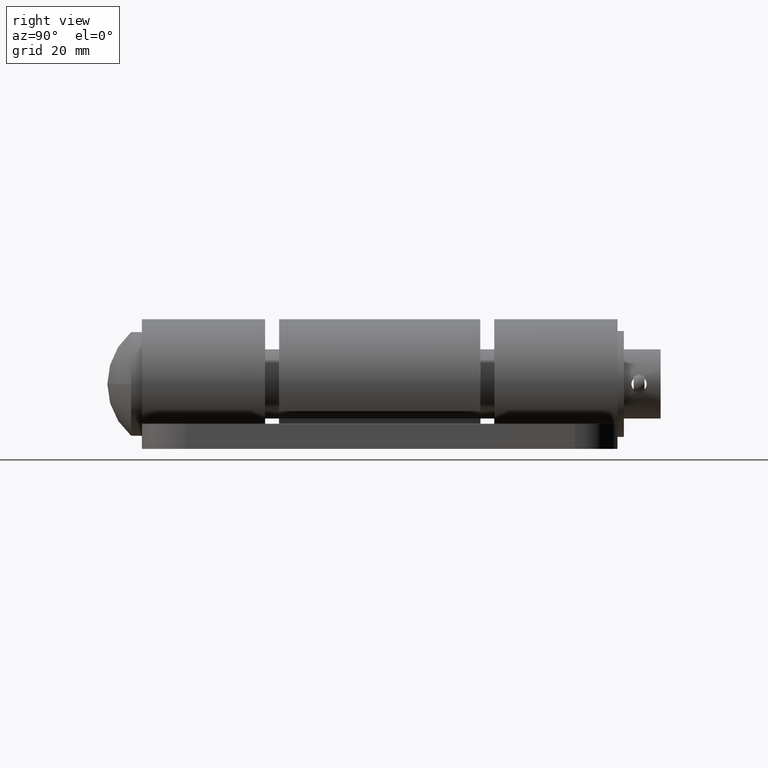
[diagram: clean part render]
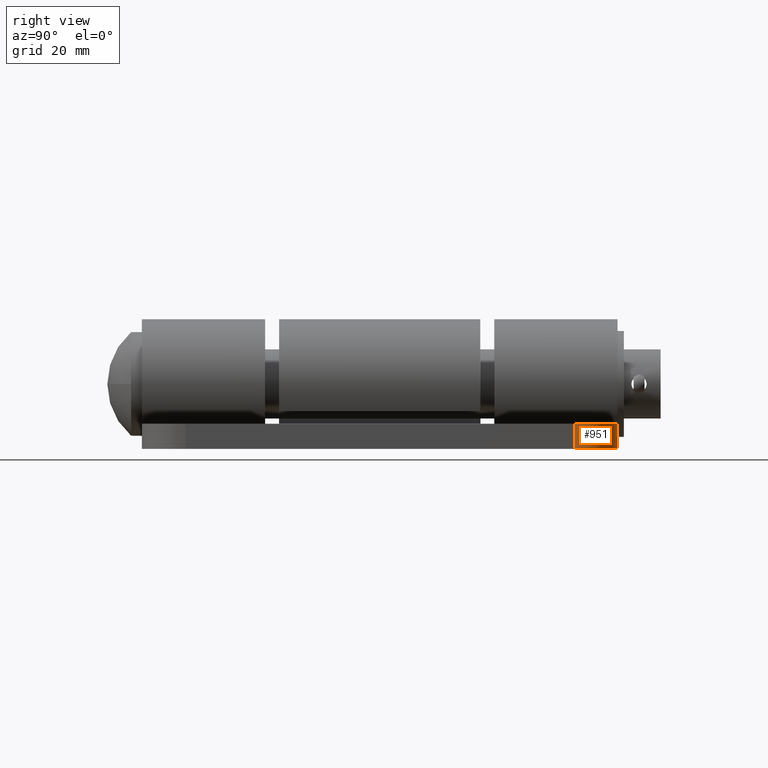
[diagram: same view with one face highlighted and labeled with its STEP entity id]
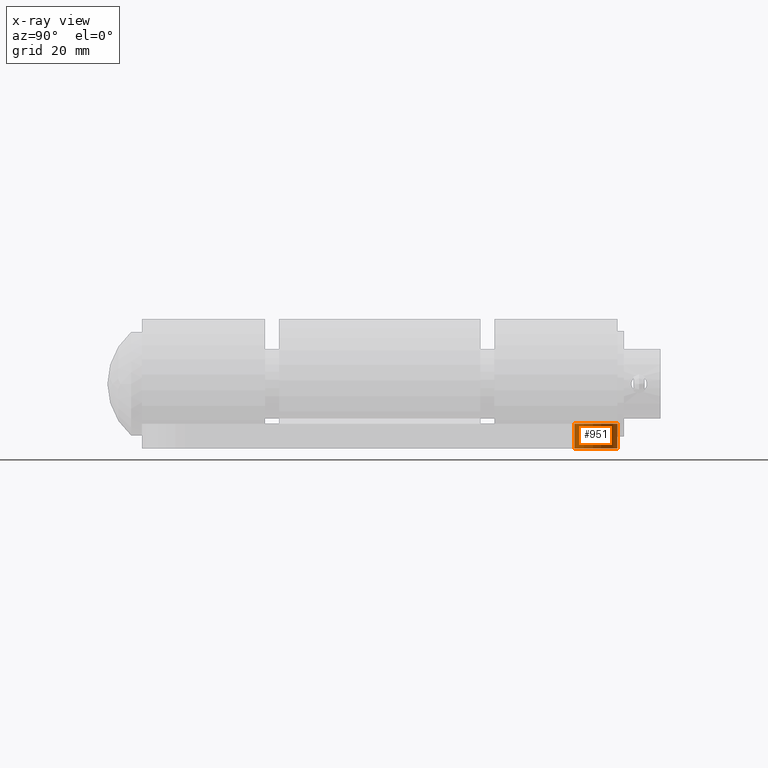
[diagram: x-ray of the same camera — body ghosted, the highlighted face saturated]
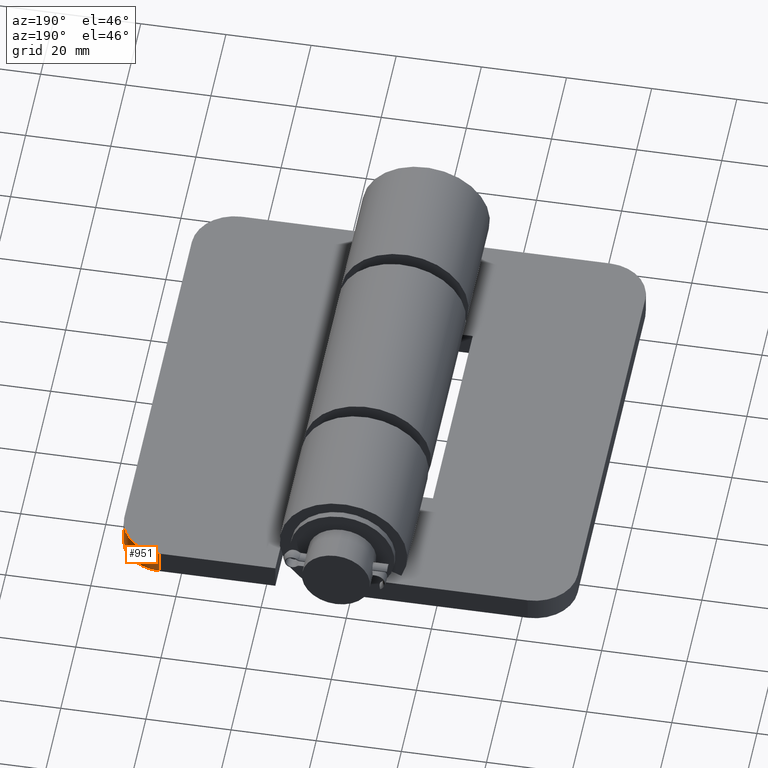
[diagram: same view with one face highlighted and labeled with its STEP entity id]
A machine part, right view. The second image highlights one B-rep face of the part: STEP entity #951.
The next image is the same camera in x-ray: the body ghosted, the highlighted face saturated — about 0% of this face is hidden behind the body in this view.
A second angle (auxiliary view) of the same face is appended — the face is thin or edge-on in the first view.
In plain terms, the highlighted cylindrical surface (partial cylindrical patch) has radius 10 mm, axis along (0, 0, 1).
Its self-contained STEP definition (entity closure, byte-faithful):
#123=FACE_OUTER_BOUND('',#189,.T.);
#189=EDGE_LOOP('',(#831,#832,#833,#834));
#252=LINE('',#1703,#329);
#261=LINE('',#1724,#338);
#329=VECTOR('',#1309,5.8);
#338=VECTOR('',#1326,5.8);
#399=CIRCLE('',#1057,10.);
#400=CIRCLE('',#1059,10.);
#475=VERTEX_POINT('',#1700);
#476=VERTEX_POINT('',#1702);
#483=VERTEX_POINT('',#1718);
#484=VERTEX_POINT('',#1722);
#594=EDGE_CURVE('',#476,#475,#252,.T.);
#603=EDGE_CURVE('',#475,#483,#399,.T.);
#604=EDGE_CURVE('',#484,#476,#400,.T.);
#605=EDGE_CURVE('',#483,#484,#261,.T.);
#831=ORIENTED_EDGE('',*,*,#604,.T.);
#832=ORIENTED_EDGE('',*,*,#594,.T.);
#833=ORIENTED_EDGE('',*,*,#603,.T.);
#834=ORIENTED_EDGE('',*,*,#605,.T.);
#903=CYLINDRICAL_SURFACE('',#1058,10.);
#951=ADVANCED_FACE('',(#123),#903,.T.);
#1057=AXIS2_PLACEMENT_3D('',#1720,#1320,#1321);
#1058=AXIS2_PLACEMENT_3D('',#1721,#1322,#1323);
#1059=AXIS2_PLACEMENT_3D('',#1723,#1324,#1325);
#1309=DIRECTION('',(0.,-1.,0.));
#1320=DIRECTION('center_axis',(-3.38800453524109E-17,1.,0.));
#1321=DIRECTION('ref_axis',(-0.707106781186547,0.,0.707106781186547));
#1322=DIRECTION('center_axis',(0.,1.,0.));
#1323=DIRECTION('ref_axis',(-0.707106781186547,0.,0.707106781186547));
#1324=DIRECTION('center_axis',(2.91889621497694E-16,-1.,0.));
#1325=DIRECTION('ref_axis',(-0.707106781186547,0.,0.707106781186547));
#1326=DIRECTION('',(0.,1.,0.));
#1700=CARTESIAN_POINT('',(-53.25,-1.80411241501588E-15,45.));
#1702=CARTESIAN_POINT('',(-53.25,5.8,45.));
#1703=CARTESIAN_POINT('',(-53.25,7.67080088645184,45.));
#1718=CARTESIAN_POINT('',(-43.25,-1.46531196149177E-15,55.));
#1720=CARTESIAN_POINT('Origin',(-43.25,0.,45.));
#1721=CARTESIAN_POINT('Origin',(-43.25,7.67080088645184,45.));
#1722=CARTESIAN_POINT('',(-43.25,5.8,55.));
#1723=CARTESIAN_POINT('Origin',(-43.25,5.8,45.));
#1724=CARTESIAN_POINT('',(-43.25,7.67080088645184,55.));